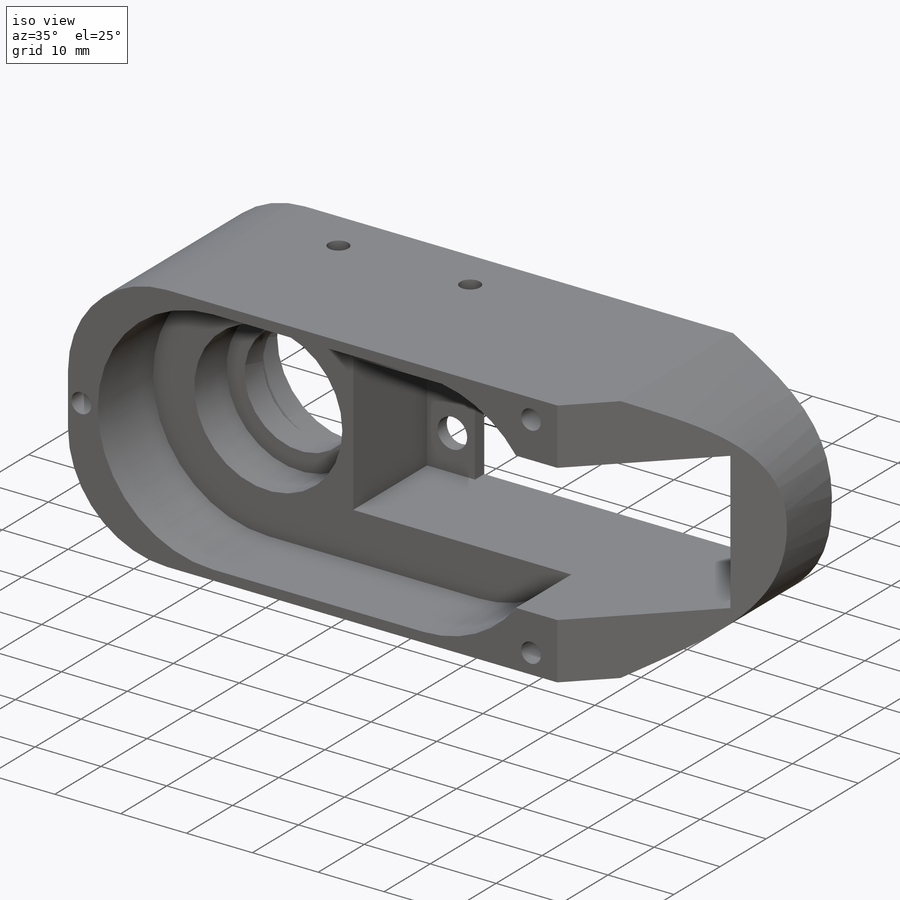
[diagram: iso view]
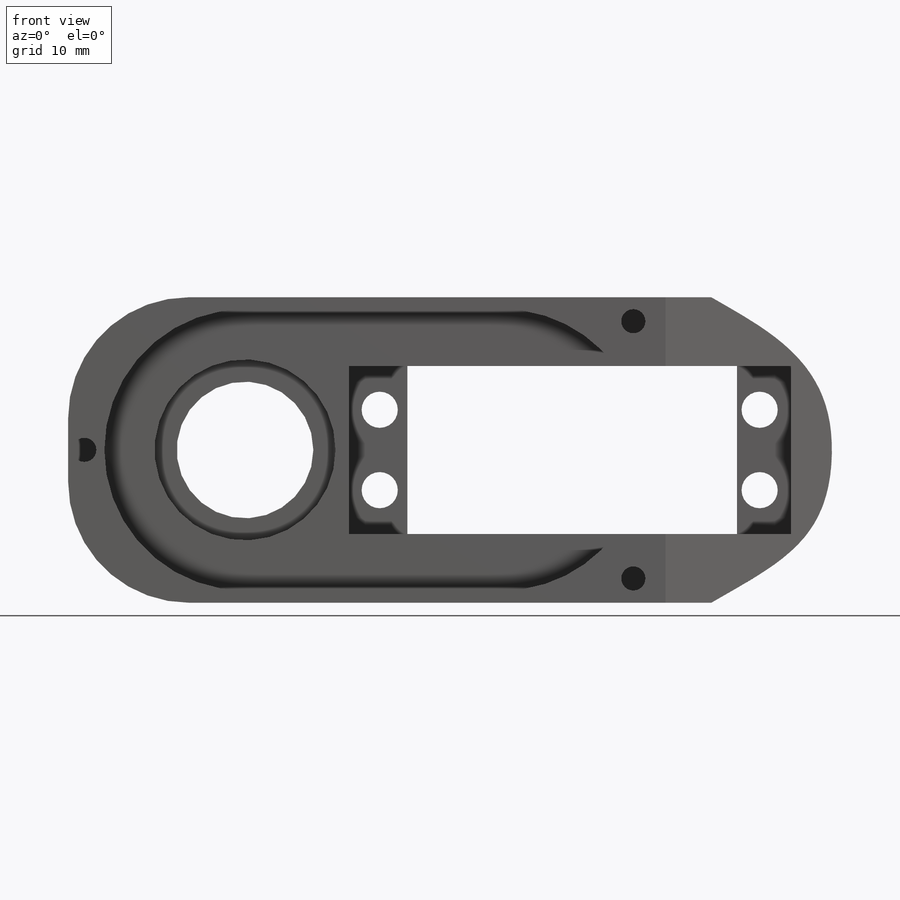
[diagram: front view]
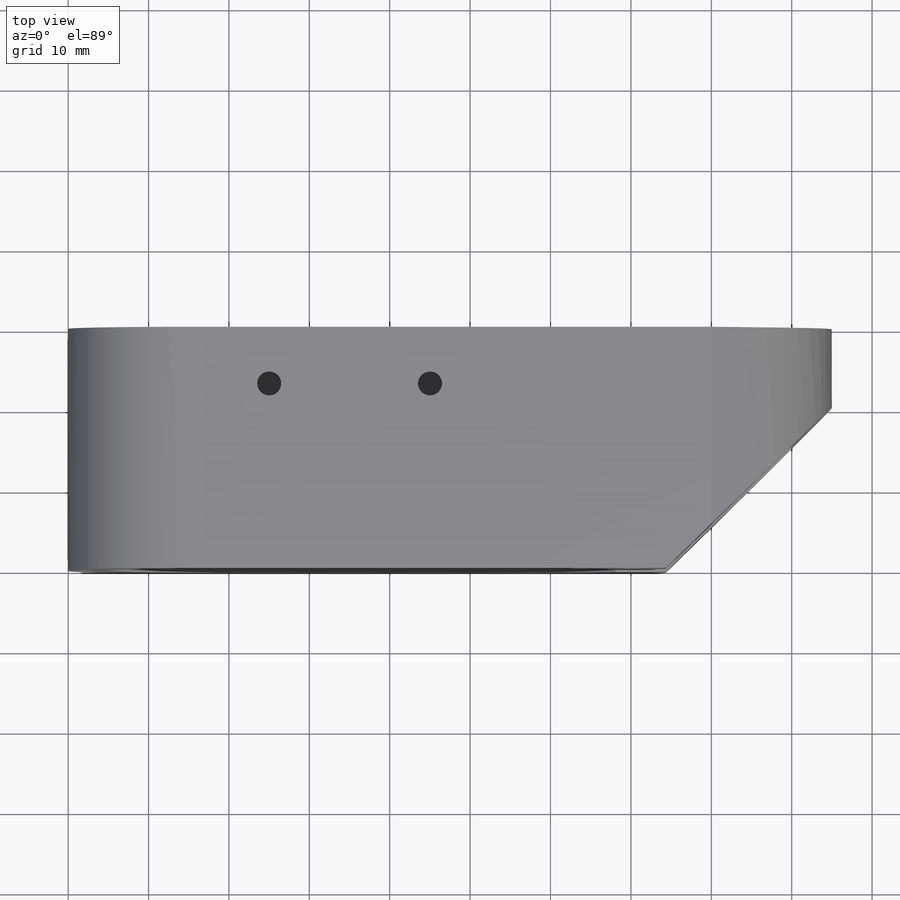
[diagram: top view]
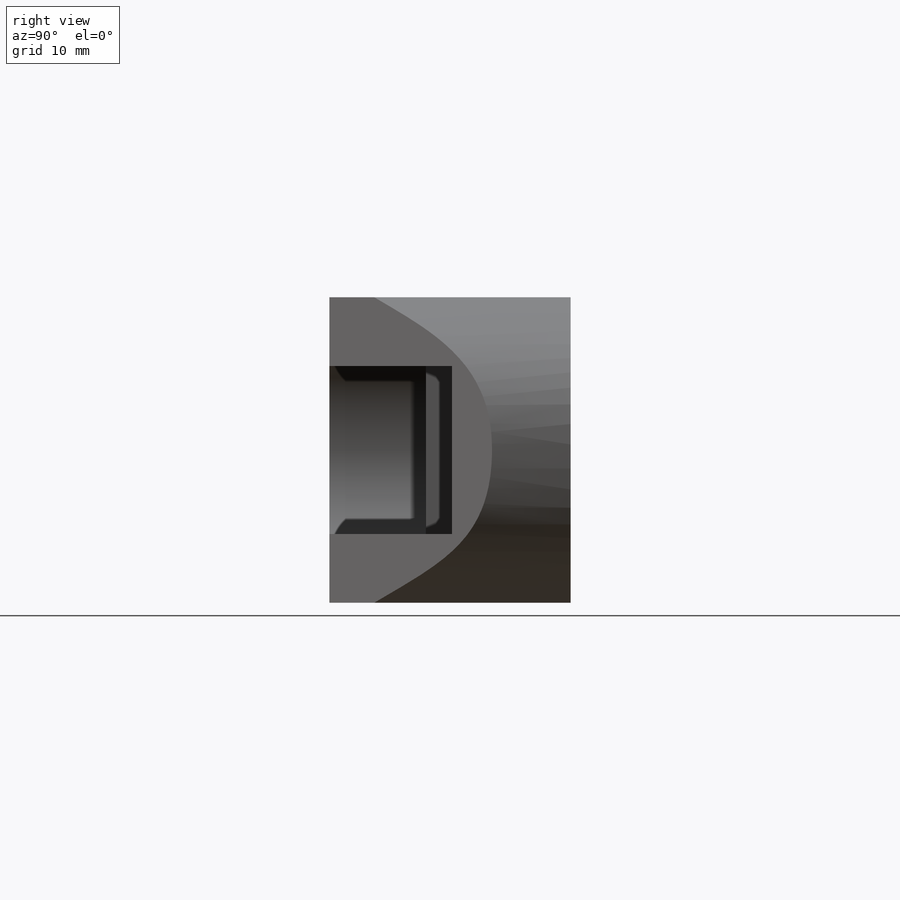
[diagram: right view]
SOLIDWORKS PART (.sldprt)
format: sldprt  version: not decoded by parser v0  size: 310,272 bytes
history: native  units: mm
features: sketch x14, cut_extrude x9, hole x2, material x1, extrude x1, fillet x1, mirror x1 (+14 scaffold rows collapsed)
feature tree (43):
  scaffold x14  (default folders/planes/origin — collapsed)
  material  "Material <not specified>"
  sketch  "Sketch1"  dims[D1=80.0mm D2=38.0mm D3=50.0mm]
  extrude  "Extrude1"  Depth=30mm
  sketch  "Sketch2"  dims[D1=35.0mm D4=17.5mm D2=22.0mm D3=32.0mm]
  cut_extrude  "Extrude2"  Depth=12mm
  sketch  "Sketch4"  dims[D1=22.5mm]
  cut_extrude  "Extrude3"  Depth=7mm
  sketch  "Sketch5"  dims[D1=17.0mm]
  cut_extrude  "Extrude4"  [1 undecoded]
  sketch  "Sketch6"  dims[D1=22.5mm]
  cut_extrude  "Extrude5"  Depth=7mm
  sketch  "Sketch8"  dims[D1=~18.755924mm D2=30.0mm]
  cut_extrude  "Extrude6"  [1 undecoded]
  sketch  "Sketch7"  dims[c1.D3=30.0mm c1.D1=55.0mm c1.D2=9.8mm c2.D3=41.0mm c2.D2=9.8mm]
  cut_extrude  "Extrude7"  [1 undecoded]
  sketch  "Sketch10"  dims[D1=55.0mm D2=6.7mm]
  cut_extrude  "Extrude8"  Depth=28mm
  fillet  "Fillet1"  Radius=15mm
  sketch  "Sketch17"
  cut_extrude  "Extrude17"  [1 undecoded]
  sketch  "Sketch19"  dims[D1=3.0mm D2=20.0mm D3=10.0mm]
  cut_extrude  "Extrude19"  Depth=6mm
  mirror  "Mirror4"
  hole  "Ø4.5 (4.5) Diameter Hole1"  Diameter=4.5mm Depth=20mm
  sketch  "3DSketch1"  dims[D1=10.0mm D2=47.26mm D3=5.45mm D4=~5.891455mm]
  sketch  "Sketch20"  dims[hole-wizard template sketch: 47 standard entries collapsed; hole parameters kept: c15.Hole Depth=20.0mm c15.D3=~14.816244mm c15.Drill Angle=180.0deg]
  hole  "Ø3.0 (3) Diameter Hole1"  Diameter=3mm Depth=20mm
  sketch  "3DSketch2"  dims[D1=2.0mm D2=3.0mm D3=3.0mm D4=4.0mm]
  sketch  "Sketch21"  dims[hole-wizard template sketch: 50 standard entries collapsed; hole parameters above]
decode coverage: 22 of 28 modeling features carry decoded parameters
note: ~ marks probable driven/reference dimensions
note: 4 parameter values undecoded
summary: no parameter record found for 4 features
note: suppression state not decoded; provenance and decode notes live in map.json
